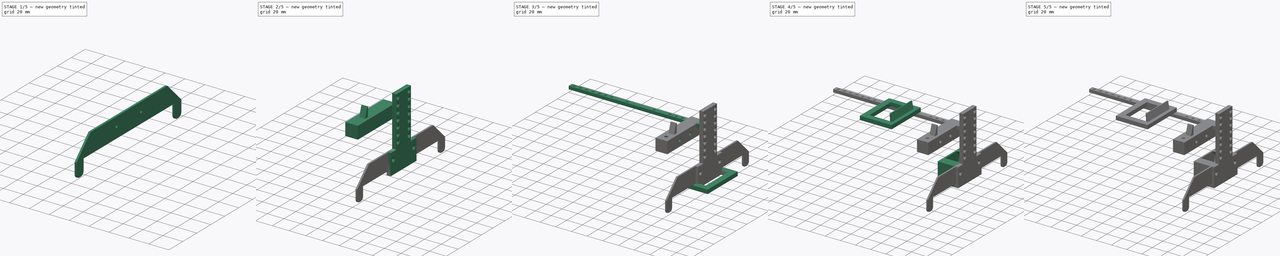
[diagram: build sequence overview — one tinted view per stage of 5, left to right]
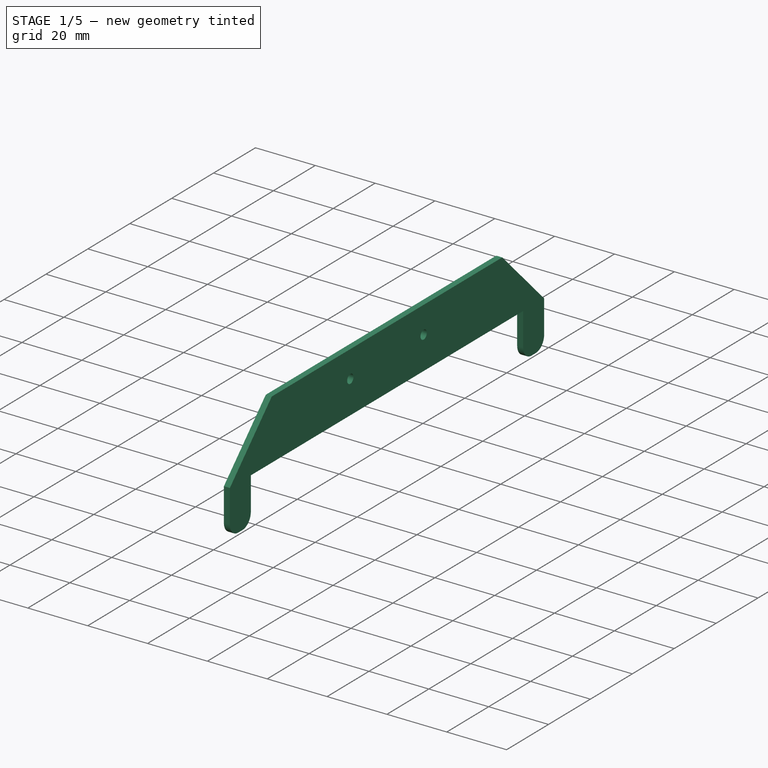
[diagram: stage 1 of 5 — iso view after this stage's code; geometry added in this stage tinted green]
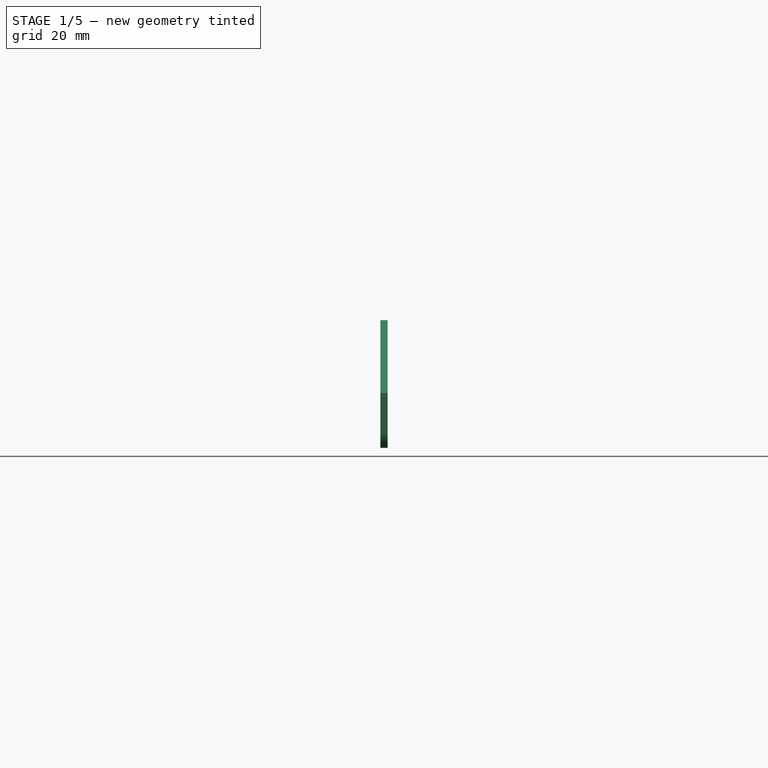
[diagram: stage 1 of 5 — front view after this stage's code; geometry added in this stage tinted green]
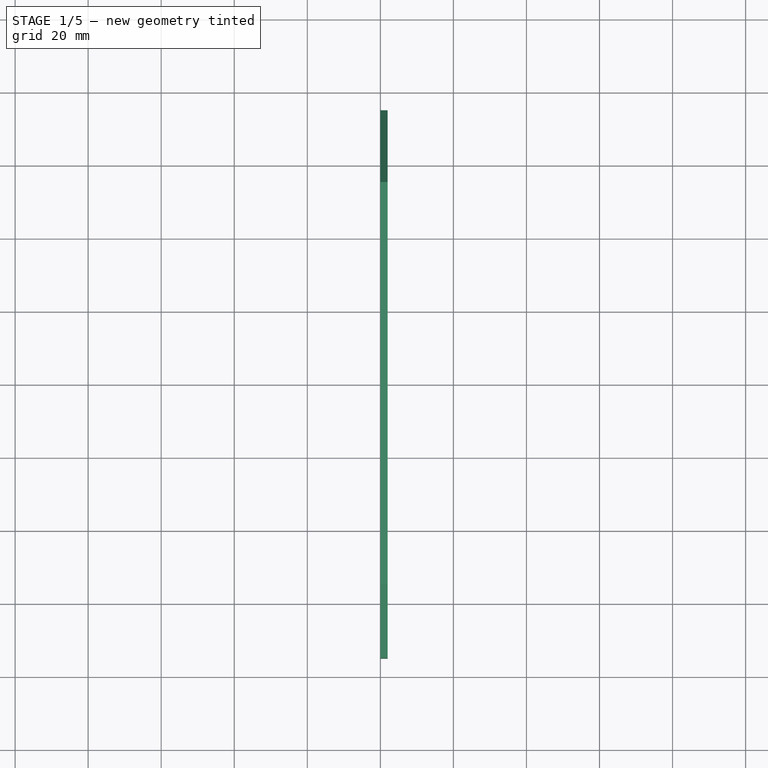
[diagram: stage 1 of 5 — top view after this stage's code; geometry added in this stage tinted green]
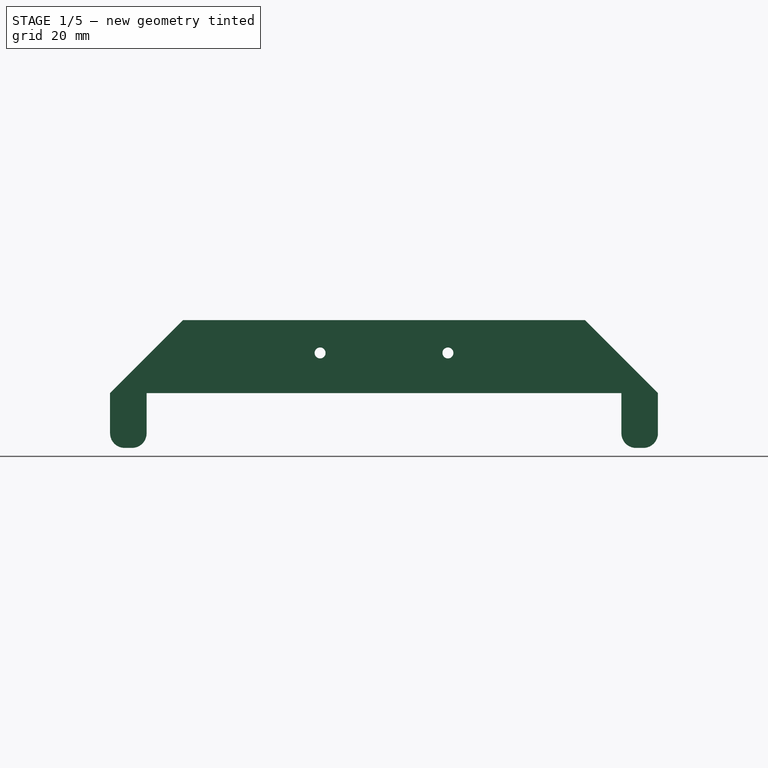
[diagram: stage 1 of 5 — right view after this stage's code; geometry added in this stage tinted green]
FCSTD DOCUMENT  (FreeCAD 0.21R33771 (Git))
Label: chessbot_chassy
License: All rights reserved
LicenseURL: https://en.wikipedia.org/wiki/All_rights_reserved
objects: Sketcher::SketchObject×18, PartDesign::Pad×9, PartDesign::Pocket×9, PartDesign::Body×8, PartDesign::Chamfer×3, Part::Mirroring×2, PartDesign::Hole×1, PartDesign::Fillet×1
note: 74 computed .brp shape members not serialized (recipe doc carries the construction recipe); baked Part::Feature solids carry a one-line shape summary decoded from their .brp

FEATURE [PartDesign::Body] Body005  label="Z-Conector"
  Group = -> [Sketch013,Pad007,Chamfer]
  Origin = -> Origin005
  Placement = pos=(-27,0,0) rot=(0,0,1;0rad)
  Tip = -> Chamfer
FEATURE [Sketcher::SketchObject] Sketch018
  FullyConstrained = true
  MapMode = 5
  Placement = pos=(0,0,0) rot=(0.57735,0.57735,0.57735;2.0944rad)
  Support = -> [YZ_Plane008]
  sketch-geometry (5):
    g0: LineSegment StartX=75 StartY=25 StartZ=0 EndX=75 EndY=-10 EndZ=0
    g1: LineSegment StartX=75 StartY=-10 StartZ=0 EndX=-75 EndY=-10 EndZ=0
    g2: LineSegment StartX=-75 StartY=-10 StartZ=0 EndX=-75 EndY=25 EndZ=0
    g3: LineSegment StartX=-75 StartY=25 StartZ=0 EndX=75 EndY=25 EndZ=0
    g4: GeomPoint X=0 Y=7.5 Z=0
  constraints (13):
    c: Coincident(g0,g1)
    c: Coincident(g1,g2)
    c: Coincident(g2,g3)
    c: Coincident(g3,g0)
    c: Horizontal(g1)
    c: Horizontal(g3)
    c: Vertical(g0)
    c: Vertical(g2)
    c: Symmetric(g1,g0,g4)
    c: PointOnObject(g4,g-2)
    c: Distance(g0) = 35
    c: Distance(g3) = 150
    c: DistanceY(g-1,g2) = 25
FEATURE [PartDesign::Pad] Pad010
  Direction = (1,-2e-16,3e-16)
  Length = 2
  Length2 = 10
  Placement = pos=(0,0,0) rot=(0.57735,0.57735,0.57735;2.0944rad)
  Profile = -> Sketch018
  ReferenceAxis = -> Sketch018 [N_Axis]
  Type = 0
FEATURE [Sketcher::SketchObject] Sketch019
  FullyConstrained = true
  MapMode = 5
  Placement = pos=(0,0,0) rot=(0.57735,0.57735,0.57735;2.0944rad)
  Support = -> [YZ_Plane008]
  sketch-geometry (5):
    g0: LineSegment StartX=65 StartY=-45 StartZ=0 EndX=65 EndY=5 EndZ=0
    g1: LineSegment StartX=65 StartY=5 StartZ=0 EndX=-65 EndY=5 EndZ=0
    g2: LineSegment StartX=-65 StartY=5 StartZ=0 EndX=-65 EndY=-45 EndZ=0
    g3: LineSegment StartX=-65 StartY=-45 StartZ=0 EndX=65 EndY=-45 EndZ=0
    g4: GeomPoint X=0 Y=-20 Z=0
  constraints (13):
    c: Coincident(g0,g1)
    c: Coincident(g1,g2)
    c: Coincident(g2,g3)
    c: Coincident(g3,g0)
    c: Horizontal(g1)
    c: Horizontal(g3)
    c: Vertical(g0)
    c: Vertical(g2)
    c: Symmetric(g1,g0,g4)
    c: Distance(g0) = 50
    c: PointOnObject(g4,g-2)
    c: DistanceY(g-1,g1) = 5
    c: Distance(g3) = 130
FEATURE [PartDesign::Pocket] Pocket007
  BaseFeature = -> Pad010
  Direction = (-1,2e-16,-3e-16)
  Length = 2
  Length2 = 5
  Placement = pos=(0,0,0) rot=(0.57735,0.57735,0.57735;2.0944rad)
  Profile = -> Sketch019
  ReferenceAxis = -> Sketch019 [N_Axis]
  Reversed = true
  Type = 0
FEATURE [PartDesign::Fillet] Fillet
  Base = -> Pocket007 [Edge24,Edge21,Edge9,Edge2]
  BaseFeature = -> Pocket007
  Placement = pos=(0,0,0) rot=(0.57735,0.57735,0.57735;2.0944rad)
  Radius = 4
  SupportTransform = false
  UseAllEdges = false
FEATURE [Sketcher::SketchObject] Sketch020
  FullyConstrained = true
  MapMode = 5
  Placement = pos=(0,0,0) rot=(0.57735,0.57735,0.57735;2.0944rad)
  Support = -> [YZ_Plane008]
  sketch-geometry (2):
    g0: Circle CenterX=17.5 CenterY=16 CenterZ=0 NormalX=0 NormalY=0 NormalZ=1 AngleXU=0 Radius=1.5
    g1: Circle CenterX=-17.5 CenterY=16 CenterZ=0 NormalX=0 NormalY=0 NormalZ=1 AngleXU=0 Radius=1.5
  constraints (6):
    c: Equal(g1,g0)
    c: Diameter(g0) = 3
    c: Horizontal(g1,g0)
    c: DistanceX(g-1,g0) = 17.5
    c: DistanceX(g1,g-1) = 17.5
    c: DistanceY(g-1,g0) = 16
FEATURE [PartDesign::Pocket] Pocket008
  BaseFeature = -> Fillet
  Direction = (-1,2e-16,-3e-16)
  Length = 2
  Length2 = 5
  Placement = pos=(0,0,0) rot=(0.57735,0.57735,0.57735;2.0944rad)
  Profile = -> Sketch020
  ReferenceAxis = -> Sketch020 [N_Axis]
  Reversed = true
  Type = 0
FEATURE [PartDesign::Chamfer] Chamfer002
  Angle = 45
  Base = -> Pocket008 [Edge20,Edge3]
  BaseFeature = -> Pocket008
  ChamferType = 0
  FlipDirection = false
  Placement = pos=(0,0,0) rot=(0.57735,0.57735,0.57735;2.0944rad)
  Size = 20
  Size2 = 15
  SupportTransform = false
  UseAllEdges = false
FEATURE [PartDesign::Body] Body008  label="stabilisator"
  Group = -> [Sketch018,Pad010,Sketch019,Pocket007,Fillet,Sketch020,Pocket008,Chamfer002]
  Origin = -> Origin008
  Tip = -> Chamfer002
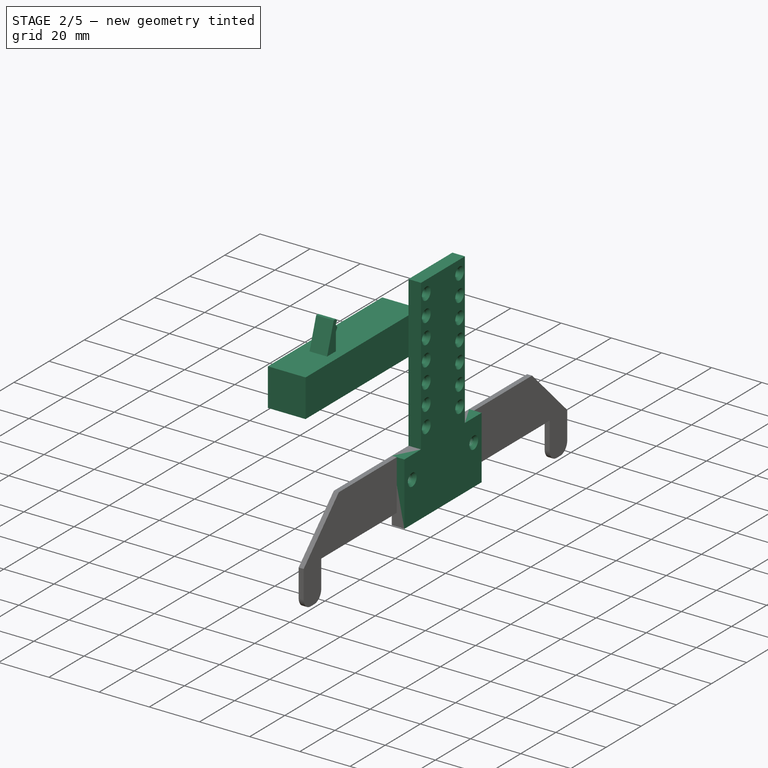
[diagram: stage 2 of 5 — iso view after this stage's code; geometry added in this stage tinted green]
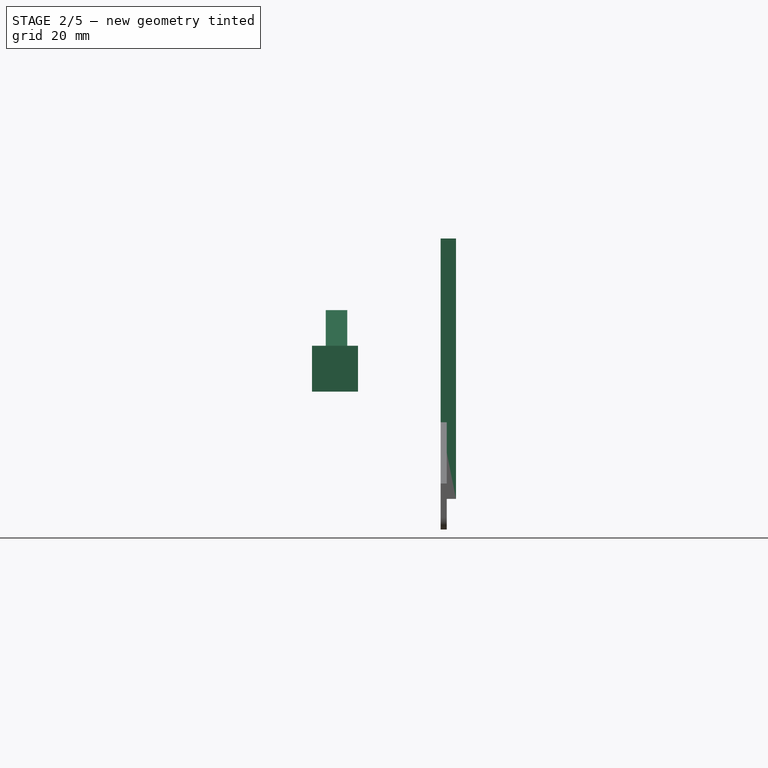
[diagram: stage 2 of 5 — front view after this stage's code; geometry added in this stage tinted green]
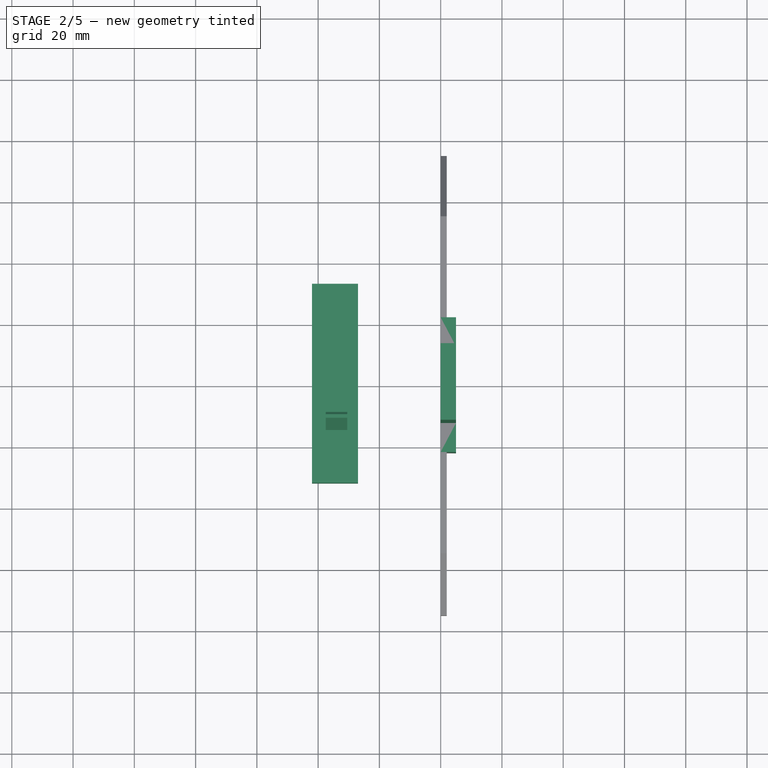
[diagram: stage 2 of 5 — top view after this stage's code; geometry added in this stage tinted green]
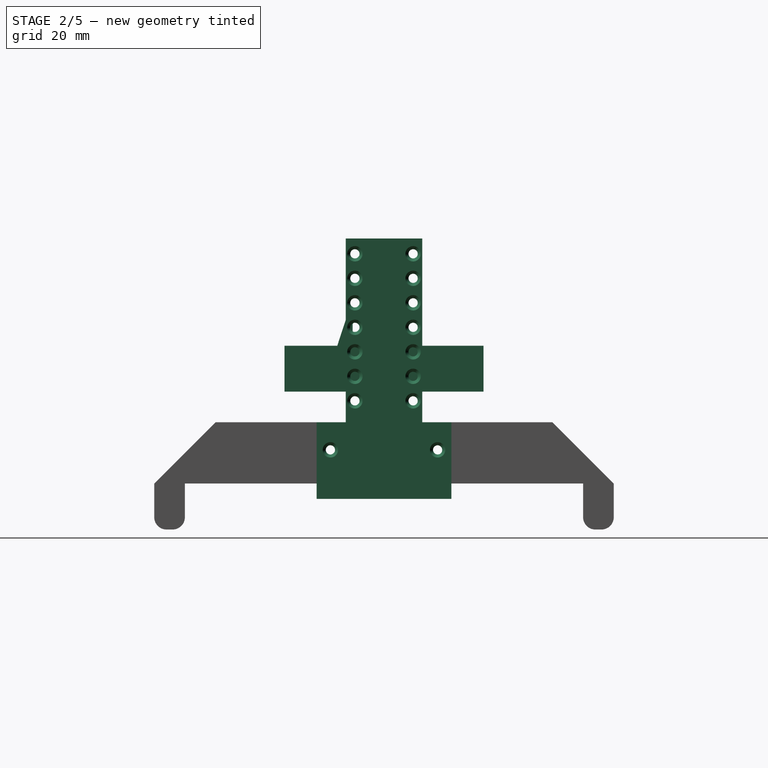
[diagram: stage 2 of 5 — right view after this stage's code; geometry added in this stage tinted green]
FEATURE [PartDesign::Body] Body004  label="X-Connector"
  Group = -> [Sketch012,Pad006,Chamfer001]
  Origin = -> Origin004
  Tip = -> Chamfer001
FEATURE [Sketcher::SketchObject] Sketch013
  FullyConstrained = true
  MapMode = 5
  Placement = pos=(0,0,0) rot=(0.57735,0.57735,0.57735;2.0944rad)
  Support = -> [YZ_Plane005]
  sketch-geometry (24):
    g0: LineSegment StartX=22 StartY=0 StartZ=0 EndX=-22 EndY=0 EndZ=0
    g1: LineSegment StartX=-22 StartY=0 StartZ=0 EndX=-22 EndY=25 EndZ=0
    g2: LineSegment StartX=-22 StartY=25 StartZ=0 EndX=-12.5 EndY=25 EndZ=0
    g3: LineSegment StartX=-12.5 StartY=25 StartZ=0 EndX=-12.5 EndY=85 EndZ=0
    g4: LineSegment StartX=-12.5 StartY=85 StartZ=0 EndX=12.5 EndY=85 EndZ=0
    g5: LineSegment StartX=12.5 StartY=85 StartZ=0 EndX=12.5 EndY=25 EndZ=0
    g6: LineSegment StartX=12.5 StartY=25 StartZ=0 EndX=22 EndY=25 EndZ=0
    g7: LineSegment StartX=22 StartY=25 StartZ=0 EndX=22 EndY=0 EndZ=0
    g8: Circle CenterX=-17.5 CenterY=16 CenterZ=0 NormalX=0 NormalY=0 NormalZ=1 AngleXU=0 Radius=1.5
    g9: Circle CenterX=17.5 CenterY=16 CenterZ=0 NormalX=0 NormalY=0 NormalZ=1 AngleXU=0 Radius=1.5
    g10: Circle CenterX=-9.5 CenterY=80 CenterZ=0 NormalX=0 NormalY=0 NormalZ=1 AngleXU=0 Radius=1.5
    g11: Circle CenterX=-9.5 CenterY=72 CenterZ=0 NormalX=0 NormalY=0 NormalZ=1 AngleXU=0 Radius=1.5
    g12: Circle CenterX=-9.5 CenterY=64 CenterZ=0 NormalX=0 NormalY=0 NormalZ=1 AngleXU=0 Radius=1.5
    g13: Circle CenterX=-9.5 CenterY=56 CenterZ=0 NormalX=0 NormalY=0 NormalZ=1 AngleXU=0 Radius=1.5
    g14: Circle CenterX=-9.5 CenterY=32 CenterZ=0 NormalX=0 NormalY=0 NormalZ=1 AngleXU=0 Radius=1.5
    g15: Circle CenterX=-9.5 CenterY=48 CenterZ=0 NormalX=0 NormalY=0 NormalZ=1 AngleXU=0 Radius=1.5
    g16: Circle CenterX=-9.5 CenterY=40 CenterZ=0 NormalX=0 NormalY=0 NormalZ=1 AngleXU=0 Radius=1.5
    g17: Circle CenterX=9.5 CenterY=80 CenterZ=0 NormalX=0 NormalY=0 NormalZ=1 AngleXU=0 Radius=1.5
    g18: Circle CenterX=9.5 CenterY=72 CenterZ=0 NormalX=0 NormalY=0 NormalZ=1 AngleXU=0 Radius=1.5
    g19: Circle CenterX=9.5 CenterY=64 CenterZ=0 NormalX=0 NormalY=0 NormalZ=1 AngleXU=0 Radius=1.5
    g20: Circle CenterX=9.5 CenterY=56 CenterZ=0 NormalX=0 NormalY=0 NormalZ=1 AngleXU=0 Radius=1.5
    g21: Circle CenterX=9.5 CenterY=32 CenterZ=0 NormalX=0 NormalY=0 NormalZ=1 AngleXU=0 Radius=1.5
    g22: Circle CenterX=9.5 CenterY=48 CenterZ=0 NormalX=0 NormalY=0 NormalZ=1 AngleXU=0 Radius=1.5
    g23: Circle CenterX=9.5 CenterY=40 CenterZ=0 NormalX=0 NormalY=0 NormalZ=1 AngleXU=0 Radius=1.5
  constraints (71):
    c: Horizontal(g0)
    c: Coincident(g0,g1)
    c: Vertical(g1)
    c: Coincident(g1,g2)
    c: Horizontal(g2)
    c: Coincident(g2,g3)
    c: Vertical(g3)
    c: Coincident(g3,g4)
    c: Horizontal(g4)
    c: Coincident(g4,g5)
    c: Vertical(g5)
    c: Coincident(g5,g6)
    c: Horizontal(g6)
    c: Coincident(g6,g7)
    c: Coincident(g7,g0)
    c: Vertical(g7)
    c: Distance(g0) = 44
    c: Distance(g7) = 25
    c: Equal(g7,g1)
    c: Equal(g2,g6)
    c: Distance(g4) = 25
    c: Symmetric(g0,g0,g-1)
    c: Distance(g3) = 60
    c: Equal(g8,g9)
    c: Horizontal(g8,g9)
    c: Distance(g9,g8) = 35
    c: Diameter(g9) = 3
    c: DistanceX(g-1,g9) = 17.5
    c: DistanceY(g-1,g9) = 16
    c: Equal(g10,g11)
    c: Equal(g11,g12)
    c: Equal(g12,g13)
    c: Equal(g13,g14)
    c: Equal(g14,g15)
    c: Equal(g15,g16)
    c: Vertical(g10,g11)
    c: Vertical(g11,g12)
    c: Vertical(g12,g13)
    c: Vertical(g13,g14)
    c: Vertical(g14,g15)
    c: Vertical(g15,g16)
    c: DistanceY(g10,g3) = 5
    c: DistanceX(g3,g10) = 3
    c: DistanceY(g11,g10) = 8
    c: DistanceY(g12,g11) = 8
    c: DistanceY(g13,g12) = 8
    c: DistanceY(g15,g13) = 8
    c: DistanceY(g16,g15) = 8
    c: DistanceY(g14,g16) = 8
    c: Diameter(g10) = 3
    c: Equal(g17,g18)
    c: Equal(g18,g19)
    c: Equal(g19,g20)
    c: Equal(g20,g21)
    c: Equal(g21,g22)
    c: Equal(g22,g23)
    c: Diameter(g17) = 3
    c: DistanceY(g18,g17) = 8
    c: DistanceY(g19,g18) = 8
    c: DistanceY(g20,g19) = 8
    c: DistanceY(g22,g20) = 8
    c: DistanceY(g23,g22) = 8
    c: DistanceY(g21,g23) = 8
    c: Vertical(g17,g18)
    c: Vertical(g18,g19)
    c: Vertical(g19,g20)
    c: Vertical(g20,g22)
    c: Vertical(g22,g23)
    c: Vertical(g23,g21)
    c: DistanceY(g17,g4) = 5
    c: DistanceX(g17,g4) = 3
FEATURE [PartDesign::Pad] Pad007
  Direction = (1,-2e-16,3e-16)
  Length = 5
  Length2 = 10
  Placement = pos=(0,0,0) rot=(0.57735,0.57735,0.57735;2.0944rad)
  Profile = -> Sketch013
  ReferenceAxis = -> Sketch013 [N_Axis]
  Type = 0
FEATURE [Sketcher::SketchObject] Sketch014
  AttachmentOffset = pos=(-27,0,50) rot=(0,0,1;0rad)
  FullyConstrained = true
  MapMode = 5
  Placement = pos=(-27,0,50) rot=(0,0,1;0rad)
  Support = -> [XY_Plane006]
  sketch-geometry (4):
    g0: LineSegment StartX=0 StartY=32.5 StartZ=0 EndX=-15 EndY=32.5 EndZ=0
    g1: LineSegment StartX=-15 StartY=32.5 StartZ=0 EndX=-15 EndY=-32.5 EndZ=0
    g2: LineSegment StartX=-15 StartY=-32.5 StartZ=0 EndX=0 EndY=-32.5 EndZ=0
    g3: LineSegment StartX=0 StartY=-32.5 StartZ=0 EndX=0 EndY=32.5 EndZ=0
  constraints (11):
    c: Coincident(g0,g1)
    c: Coincident(g1,g2)
    c: Coincident(g2,g3)
    c: Coincident(g3,g0)
    c: Horizontal(g0)
    c: Horizontal(g2)
    c: Vertical(g1)
    c: Vertical(g3)
    c: Distance(g0) = 15
    c: Distance(g1) = 65
    c: Symmetric(g3,g3,g-1)
FEATURE [PartDesign::Pad] Pad008
  Direction = (0,0,1)
  Length = 15
  Length2 = 10
  Profile = -> Sketch014
  ReferenceAxis = -> Sketch014 [N_Axis]
  Reversed = true
  Type = 0
FEATURE [PartDesign::Body] Body006  label="BridgeConnector"
  Group = -> [Sketch014,Pad008,Sketch015,Sketch016,Pocket005,Pocket006]
  Origin = -> Origin006
  Tip = -> Pocket006
FEATURE [Sketcher::SketchObject] Sketch017
  AttachmentOffset = pos=(0,0,-34) rot=(0,0,1;0rad)
  FullyConstrained = true
  MapMode = 5
  Placement = pos=(-34,7.5e-15,-7.5e-15) rot=(0.57735,0.57735,0.57735;2.0944rad)
  Support = -> [YZ_Plane007]
  sketch-geometry (11):
    g0: LineSegment StartX=10.25 StartY=50 StartZ=0 EndX=10.25 EndY=57 EndZ=0
    g1: LineSegment StartX=10.25 StartY=57 StartZ=0 EndX=9.45 EndY=58.2 EndZ=0
    g2: LineSegment StartX=9.45 StartY=58.2 StartZ=0 EndX=9.45 EndY=58.6 EndZ=0
    g3: LineSegment StartX=9.45 StartY=58.6 StartZ=0 EndX=10.25 EndY=59.2 EndZ=0
    g4: LineSegment StartX=10.25 StartY=59.2 StartZ=0 EndX=10.25 EndY=60 EndZ=0
    g5: LineSegment StartX=10.25 StartY=60 StartZ=0 EndX=9.65 EndY=60.6 EndZ=0
    g6: LineSegment StartX=9.65 StartY=60.6 StartZ=0 EndX=9.65 EndY=61 EndZ=0
    g7: LineSegment StartX=9.65 StartY=61 StartZ=0 EndX=10.25 EndY=61.6 EndZ=0
    g8: LineSegment StartX=10.25 StartY=61.6 StartZ=0 EndX=11.45 EndY=61.6 EndZ=0
    g9: LineSegment StartX=11.45 StartY=61.6 StartZ=0 EndX=15.25 EndY=50 EndZ=0
    g10: LineSegment StartX=15.25 StartY=50 StartZ=0 EndX=10.25 EndY=50 EndZ=0
  constraints (33):
    c: Vertical(g0)
    c: Coincident(g0,g1)
    c: Coincident(g1,g2)
    c: Vertical(g2)
    c: Coincident(g2,g3)
    c: Coincident(g3,g4)
    c: Vertical(g4)
    c: Coincident(g4,g5)
    c: Coincident(g5,g6)
    c: Vertical(g6)
    c: Coincident(g6,g7)
    c: Coincident(g7,g8)
    c: Horizontal(g8)
    c: Coincident(g8,g9)
    c: Coincident(g9,g10)
    c: Coincident(g10,g0)
    c: Horizontal(g10)
    c: DistanceX(g1,g0) = 0.8
    c: DistanceX(g5,g4) = 0.6
    c: DistanceY(g0,g1) = 1.2
    c: DistanceY(g2,g3) = 0.6
    c: DistanceY(g4,g5) = 0.6
    c: DistanceY(g6,g7) = 0.6
    c: DistanceX(g6,g7) = 0.6
    c: Distance(g8) = 1.2
    c: Distance(g4) = 0.8
    c: Distance(g2) = 0.4
    c: Distance(g6) = 0.4
    c: Distance(g0) = 7
    c: Distance(g10) = 5
    c: DistanceX(g2,g3) = 0.8
    c: DistanceX(g-1,g0) = 10.25
    c: DistanceY(g-1,g0) = 50
FEATURE [PartDesign::Pad] Pad009
  Direction = (1,-2e-16,3e-16)
  Length = 7
  Length2 = 10
  Midplane = true
  Placement = pos=(0,0,0) rot=(0.57735,0.57735,0.57735;2.0944rad)
  Profile = -> Sketch017
  ReferenceAxis = -> Sketch017 [N_Axis]
  Type = 0
FEATURE [PartDesign::Body] Body007  label="MCHolder"
  Group = -> [Sketch017,Pad009]
  Origin = -> Origin007
  Tip = -> Pad009
FEATURE [Part::Mirroring] Part__Mirroring001  label="Pad009 (Mirror #2)"
  Base = (0,0,0)
  Normal = (0,1,0)
  Source = -> Pad009
FEATURE [PartDesign::Chamfer] Chamfer
  Angle = 45
  Base = -> Pad007 [Edge33,Edge27,Edge45,Edge66,Edge30,Edge36,Edge60,Edge63,Edge69,Edge72,Edge57,Edge54,Edge51,Edge48,Edge42,Edge39]
  BaseFeature = -> Pad007
  ChamferType = 0
  FlipDirection = false
  Placement = pos=(0,0,0) rot=(0.57735,0.57735,0.57735;2.0944rad)
  Size = 1
  Size2 = 1
  SupportTransform = false
  UseAllEdges = false
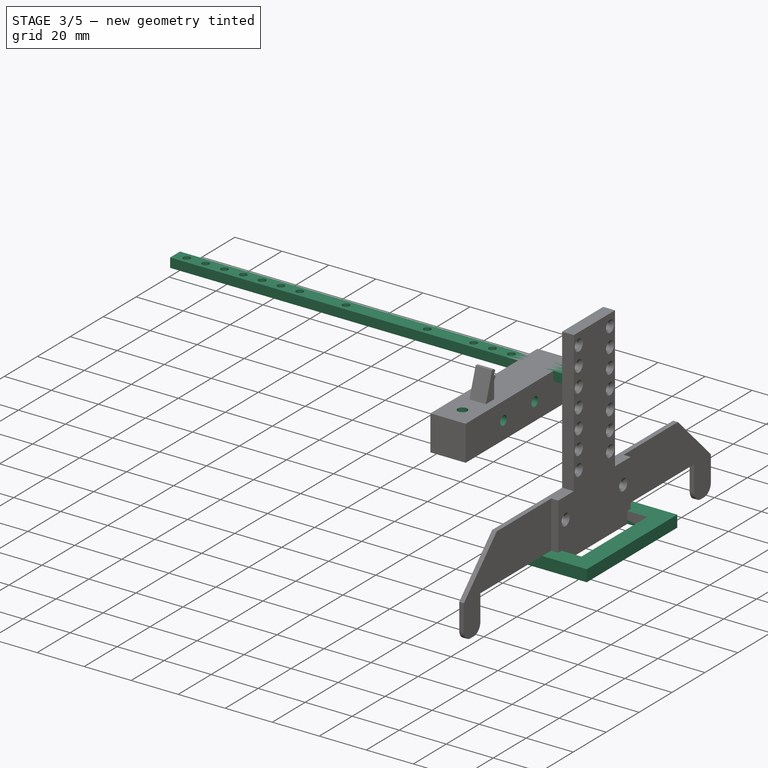
[diagram: stage 3 of 5 — iso view after this stage's code; geometry added in this stage tinted green]
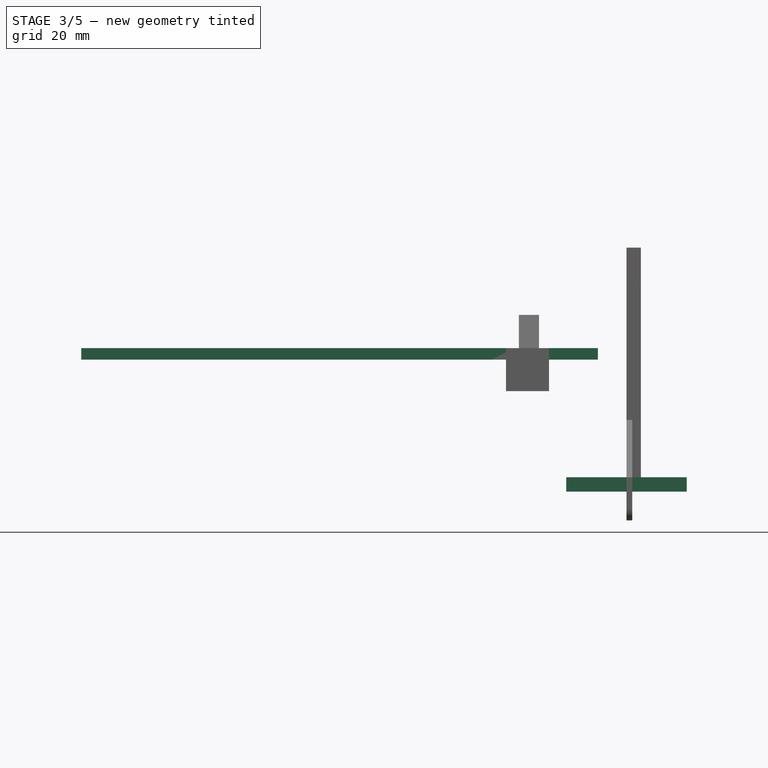
[diagram: stage 3 of 5 — front view after this stage's code; geometry added in this stage tinted green]
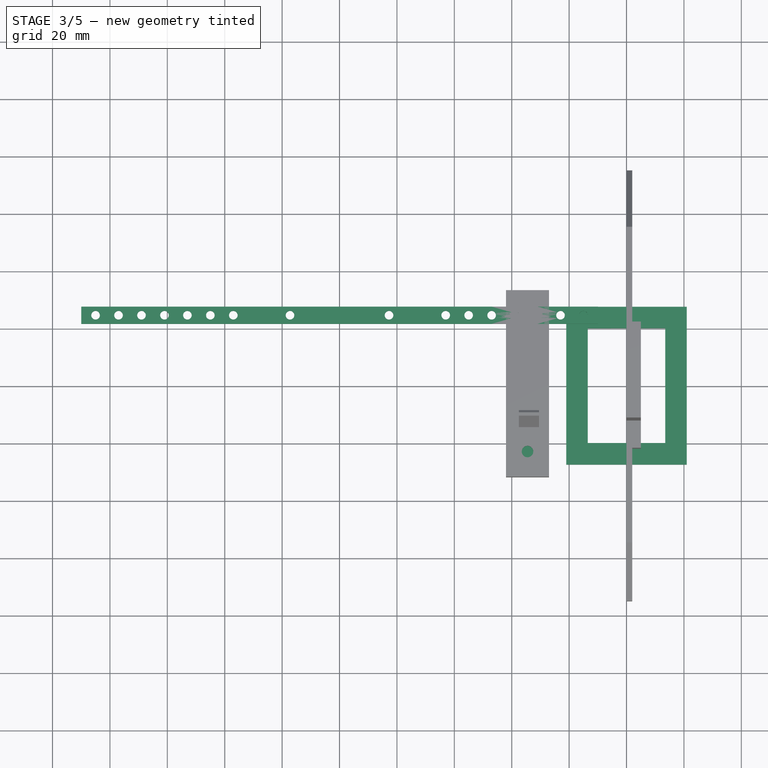
[diagram: stage 3 of 5 — top view after this stage's code; geometry added in this stage tinted green]
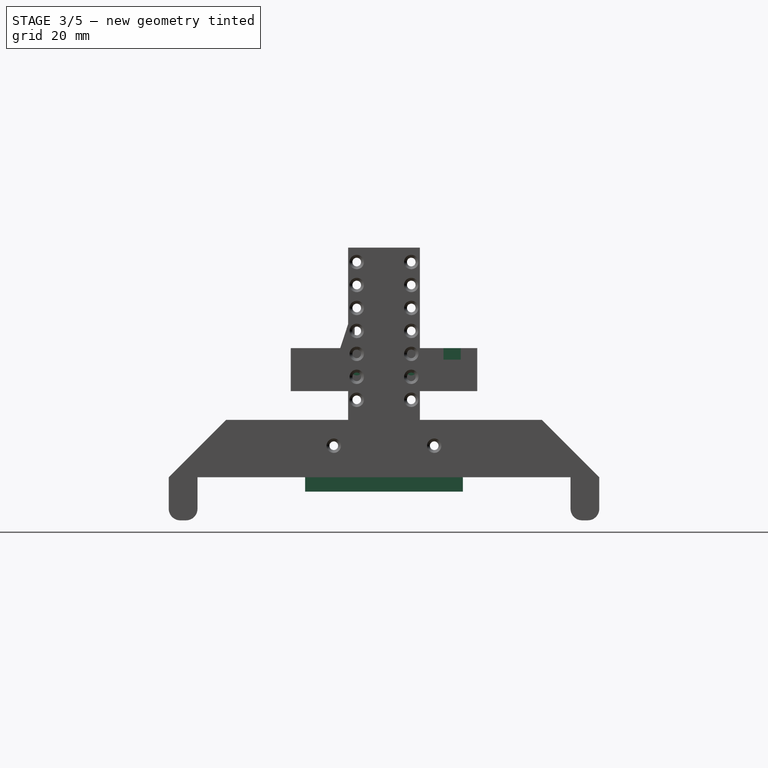
[diagram: stage 3 of 5 — right view after this stage's code; geometry added in this stage tinted green]
FEATURE [PartDesign::Body] Body  label="MotorMount"
  Group = -> [Sketch,Pad,Sketch001,Pocket,Sketch002,Pocket001,Sketch005,Pocket002,Sketch006,Pocket003]
  Origin = -> Origin
  Tip = -> Pocket003
FEATURE [Sketcher::SketchObject] Sketch009  label="Baseplate"
  FullyConstrained = true
  MapMode = 5
  Support = -> [XY_Plane003]
  sketch-geometry (10):
    g0: LineSegment StartX=-21 StartY=27.5 StartZ=0 EndX=-21 EndY=-27.5 EndZ=0
    g1: LineSegment StartX=-21 StartY=-27.5 StartZ=0 EndX=21 EndY=-27.5 EndZ=0
    g2: LineSegment StartX=21 StartY=-27.5 StartZ=0 EndX=21 EndY=27.5 EndZ=0
    g3: LineSegment StartX=21 StartY=27.5 StartZ=0 EndX=-21 EndY=27.5 EndZ=0
    g4: GeomPoint X=0 Y=0 Z=0
    g5: LineSegment StartX=13.5 StartY=-20 StartZ=0 EndX=13.5 EndY=20 EndZ=0
    g6: LineSegment StartX=13.5 StartY=20 StartZ=0 EndX=-13.5 EndY=20 EndZ=0
    g7: LineSegment StartX=-13.5 StartY=20 StartZ=0 EndX=-13.5 EndY=-20 EndZ=0
    g8: LineSegment StartX=-13.5 StartY=-20 StartZ=0 EndX=13.5 EndY=-20 EndZ=0
    g9: GeomPoint X=0 Y=0 Z=0
  constraints (24):
    c: Coincident(g0,g1)
    c: Coincident(g1,g2)
    c: Coincident(g2,g3)
    c: Coincident(g3,g0)
    c: Horizontal(g1)
    c: Horizontal(g3)
    c: Vertical(g0)
    c: Vertical(g2)
    c: Symmetric(g1,g0,g4)
    c: Distance(g3) = 42
    c: Distance(g2) = 55
    c: Coincident(g-1,g4)
    c: Coincident(g5,g6)
    c: Coincident(g6,g7)
    c: Coincident(g7,g8)
    c: Coincident(g8,g5)
    c: Horizontal(g6)
    c: Horizontal(g8)
    c: Vertical(g5)
    c: Vertical(g7)
    c: Symmetric(g6,g5,g9)
    c: Distance(g6) = 27
    c: Distance(g5) = 40
    c: Coincident(g9,g4)
FEATURE [PartDesign::Pad] Pad004
  Direction = (0,0,1)
  Length = 5
  Length2 = 10
  Profile = -> Sketch009
  ReferenceAxis = -> Sketch009 [N_Axis]
  Type = 0
FEATURE [Sketcher::SketchObject] Sketch012
  AttachmentOffset = pos=(-100,0,50) rot=(0,0,1;0rad)
  FullyConstrained = false
  MapMode = 5
  Placement = pos=(-100,0,50) rot=(0,0,1;0rad)
  Support = -> [XY_Plane004]
  sketch-geometry (22):
    g0: LineSegment StartX=-90 StartY=26.75 StartZ=0 EndX=-90 EndY=20.75 EndZ=0
    g1: LineSegment StartX=-90 StartY=20.75 StartZ=0 EndX=90 EndY=20.75 EndZ=0
    g2: LineSegment StartX=90 StartY=20.75 StartZ=0 EndX=90 EndY=26.75 EndZ=0
    g3: LineSegment StartX=90 StartY=26.75 StartZ=0 EndX=-90 EndY=26.75 EndZ=0
    g4: GeomPoint X=0 Y=23.75 Z=0
    g5: Circle CenterX=17.25 CenterY=23.75 CenterZ=0 NormalX=0 NormalY=0 NormalZ=1 AngleXU=0 Radius=1.5
    g6: Circle CenterX=85 CenterY=23.75 CenterZ=0 NormalX=0 NormalY=0 NormalZ=1 AngleXU=0 Radius=1.5
    g7: Circle CenterX=77 CenterY=23.75 CenterZ=0 NormalX=0 NormalY=0 NormalZ=1 AngleXU=0 Radius=1.5
    g8: Circle CenterX=69 CenterY=23.75 CenterZ=0 NormalX=0 NormalY=0 NormalZ=1 AngleXU=0 Radius=1.5
    g9: Circle CenterX=61 CenterY=23.75 CenterZ=0 NormalX=0 NormalY=0 NormalZ=1 AngleXU=0 Radius=1.5
    g10: Circle CenterX=53 CenterY=23.75 CenterZ=0 NormalX=0 NormalY=0 NormalZ=1 AngleXU=0 Radius=1.5
    g11: Circle CenterX=45 CenterY=23.75 CenterZ=0 NormalX=0 NormalY=0 NormalZ=1 AngleXU=0 Radius=1.5
    g12: Circle CenterX=37 CenterY=23.75 CenterZ=0 NormalX=0 NormalY=0 NormalZ=1 AngleXU=0 Radius=1.5
    g13: Circle CenterX=-85 CenterY=23.75 CenterZ=0 NormalX=0 NormalY=0 NormalZ=1 AngleXU=0 Radius=1.5
    g14: Circle CenterX=-77 CenterY=23.75 CenterZ=0 NormalX=0 NormalY=0 NormalZ=1 AngleXU=0 Radius=1.5
    g15: Circle CenterX=-69 CenterY=23.75 CenterZ=0 NormalX=0 NormalY=0 NormalZ=1 AngleXU=0 Radius=1.5
    g16: Circle CenterX=-61 CenterY=23.75 CenterZ=0 NormalX=0 NormalY=0 NormalZ=1 AngleXU=0 Radius=1.5
    g17: Circle CenterX=-53 CenterY=23.75 CenterZ=0 NormalX=0 NormalY=0 NormalZ=1 AngleXU=0 Radius=1.5
    g18: Circle CenterX=-45 CenterY=23.75 CenterZ=0 NormalX=0 NormalY=0 NormalZ=1 AngleXU=0 Radius=1.5
    g19: Circle CenterX=-37 CenterY=23.75 CenterZ=0 NormalX=0 NormalY=0 NormalZ=1 AngleXU=0 Radius=1.5
    g20: GeomPoint X=0 Y=23.75 Z=0
    g21: Circle CenterX=-17.25 CenterY=23.75 CenterZ=0 NormalX=0 NormalY=0 NormalZ=1 AngleXU=0 Radius=1.5
  constraints (61):
    c: Coincident(g0,g1)
    c: Coincident(g1,g2)
    c: Coincident(g2,g3)
    c: Coincident(g3,g0)
    c: Horizontal(g1)
    c: Horizontal(g3)
    c: Vertical(g0)
    c: Vertical(g2)
    c: Symmetric(g1,g0,g4)
    c: PointOnObject(g4,g-2)
    c: Distance(g2) = 6
    c: Distance(g3) = 180
    c: Diameter(g5) = 3
    c: Equal(g5,g12)
    c: Equal(g5,g11)
    c: Equal(g5,g10)
    c: Equal(g5,g9)
    c: Equal(g5,g8)
    c: Equal(g5,g7)
    c: Equal(g5,g6)
    c: Horizontal(g5,g12)
    c: Horizontal(g5,g11)
    c: Horizontal(g10,g5)
    c: Horizontal(g5,g9)
    c: Horizontal(g5,g7)
    c: Horizontal(g5,g6)
    c: Horizontal(g5,g8)
    c: DistanceX(g-1,g5) = 17.25
    c: DistanceY(g-1,g5) = 23.75
    c: DistanceX(g-1,g6) = 85
    c: Horizontal(g4,g5)
    c: DistanceX(g7,g6) = 8
    c: DistanceX(g8,g7) = 8
    c: DistanceX(g9,g8) = 8
    c: DistanceX(g10,g9) = 8
    c: DistanceX(g11,g10) = 8
    c: DistanceX(g12,g11) = 8
    c: Diameter(g21) = 3
    c: Equal(g21,g19)
    c: Equal(g21,g18)
    c: Equal(g21,g17)
    c: Equal(g21,g16)
    c: Equal(g21,g15)
    c: Equal(g21,g14)
    c: Equal(g21,g13)
    c: Horizontal(g4,g21)
    c: Horizontal(g4,g19)
    c: Horizontal(g4,g18)
    c: Horizontal(g4,g17)
    c: Horizontal(g4,g16)
    c: Horizontal(g4,g15)
    c: Horizontal(g4,g14)
    c: Horizontal(g4,g13)
    c: DistanceX(g13,g4) = 85
    c: DistanceX(g13,g14) = 8
    c: DistanceX(g14,g15) = 8
    c: DistanceX(g15,g16) = 8
    c: DistanceX(g16,g17) = 8
    c: DistanceX(g17,g18) = 8
    c: DistanceX(g18,g19) = 8
    c: DistanceX(g21,g4) = 17.25
FEATURE [PartDesign::Pad] Pad006
  Direction = (0,0,1)
  Length = 4
  Length2 = 10
  Profile = -> Sketch012
  ReferenceAxis = -> Sketch012 [N_Axis]
  Reversed = true
  Type = 0
FEATURE [PartDesign::Chamfer] Chamfer001
  Angle = 45
  Base = -> Pad006 [Edge24,Edge27,Edge30,Edge33,Edge36,Edge21,Edge18,Edge15,Edge60,Edge39,Edge42,Edge45,Edge48,Edge51,Edge54,Edge57]
  BaseFeature = -> Pad006
  ChamferType = 0
  FlipDirection = false
  Size = 1.5
  Size2 = 1
  SupportTransform = false
  UseAllEdges = false
FEATURE [Sketcher::SketchObject] Sketch015
  AttachmentOffset = pos=(-34.5,0,50) rot=(0,0,1;0rad)
  FullyConstrained = true
  MapMode = 5
  Placement = pos=(-34.5,0,50) rot=(0,0,1;0rad)
  Support = -> [XY_Plane006]
  sketch-geometry (2):
    g0: Circle CenterX=0 CenterY=23.75 CenterZ=0 NormalX=0 NormalY=0 NormalZ=1 AngleXU=0 Radius=2
    g1: Circle CenterX=0 CenterY=-23.75 CenterZ=0 NormalX=0 NormalY=0 NormalZ=1 AngleXU=0 Radius=2
  constraints (6):
    c: Diameter(g0) = 4
    c: PointOnObject(g0,g-2)
    c: DistanceY(g-1,g0) = 23.75
    c: PointOnObject(g1,g-2)
    c: Equal(g0,g1)
    c: DistanceY(g1,g-1) = 23.75
FEATURE [Sketcher::SketchObject] Sketch016
  AttachmentOffset = pos=(0,0,-27) rot=(0,0,1;0rad)
  FullyConstrained = true
  MapMode = 5
  Placement = pos=(-27,6e-15,-6e-15) rot=(0.57735,0.57735,0.57735;2.0944rad)
  Support = -> [YZ_Plane006]
  sketch-geometry (2):
    g0: Circle CenterX=-9.5 CenterY=42.5 CenterZ=0 NormalX=0 NormalY=0 NormalZ=1 AngleXU=0 Radius=2
    g1: Circle CenterX=9.5 CenterY=42.5 CenterZ=0 NormalX=0 NormalY=0 NormalZ=1 AngleXU=0 Radius=2
  constraints (6):
    c: Equal(g0,g1)
    c: Diameter(g1) = 4
    c: Horizontal(g0,g1)
    c: DistanceX(g-1,g1) = 9.5
    c: DistanceX(g0,g1) = 19
    c: DistanceY(g-1,g0) = 42.5
FEATURE [PartDesign::Pocket] Pocket005
  BaseFeature = -> Pad008
  Direction = (0,0,-1)
  Length = 4
  Length2 = 5
  Profile = -> Sketch015
  ReferenceAxis = -> Sketch015 [N_Axis]
  Type = 0
FEATURE [PartDesign::Pocket] Pocket006
  BaseFeature = -> Pocket005
  Direction = (-1,2e-16,-3e-16)
  Length = 4
  Length2 = 5
  Profile = -> Sketch016
  ReferenceAxis = -> Sketch016 [N_Axis]
  Type = 0
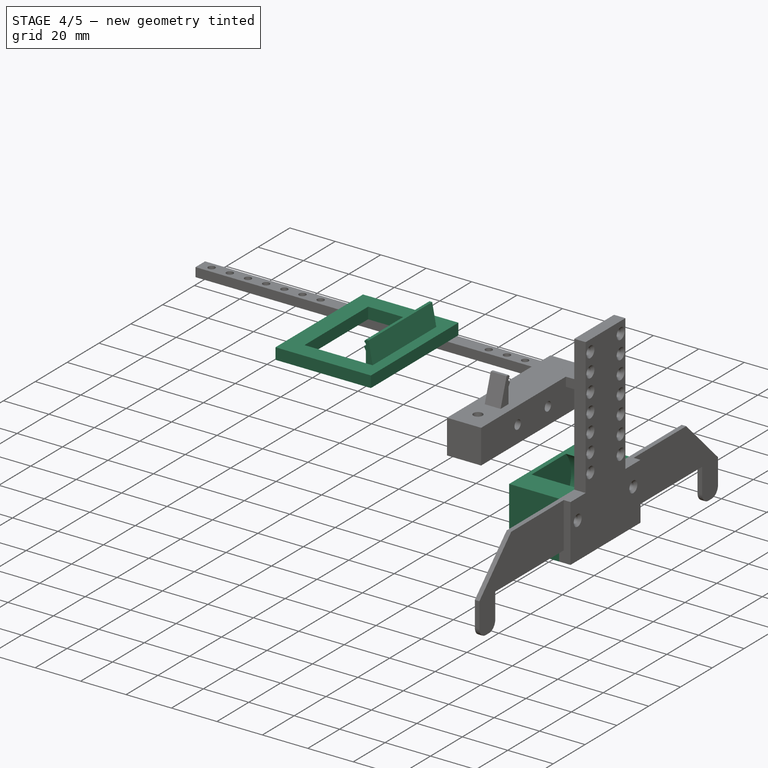
[diagram: stage 4 of 5 — iso view after this stage's code; geometry added in this stage tinted green]
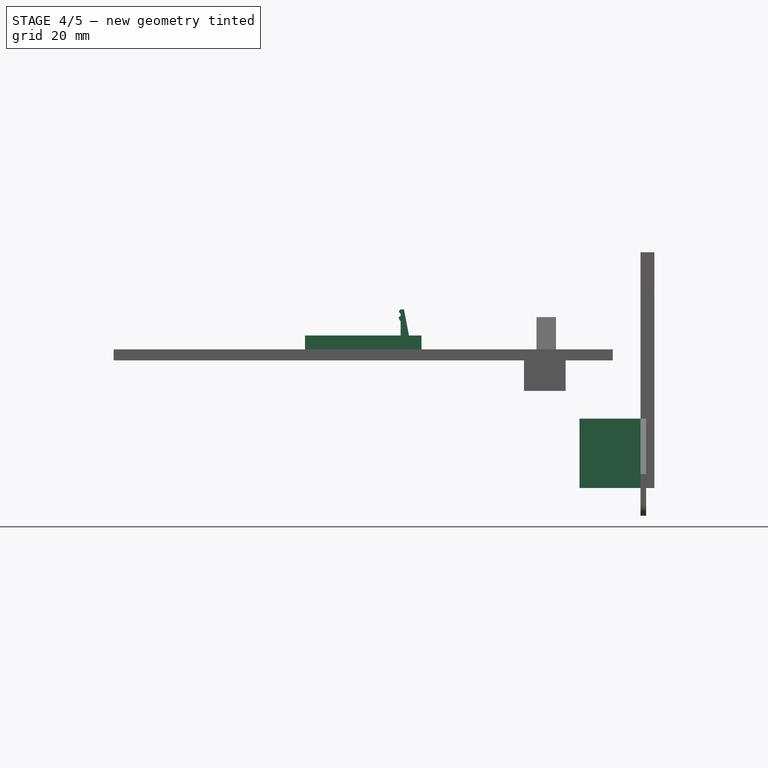
[diagram: stage 4 of 5 — front view after this stage's code; geometry added in this stage tinted green]
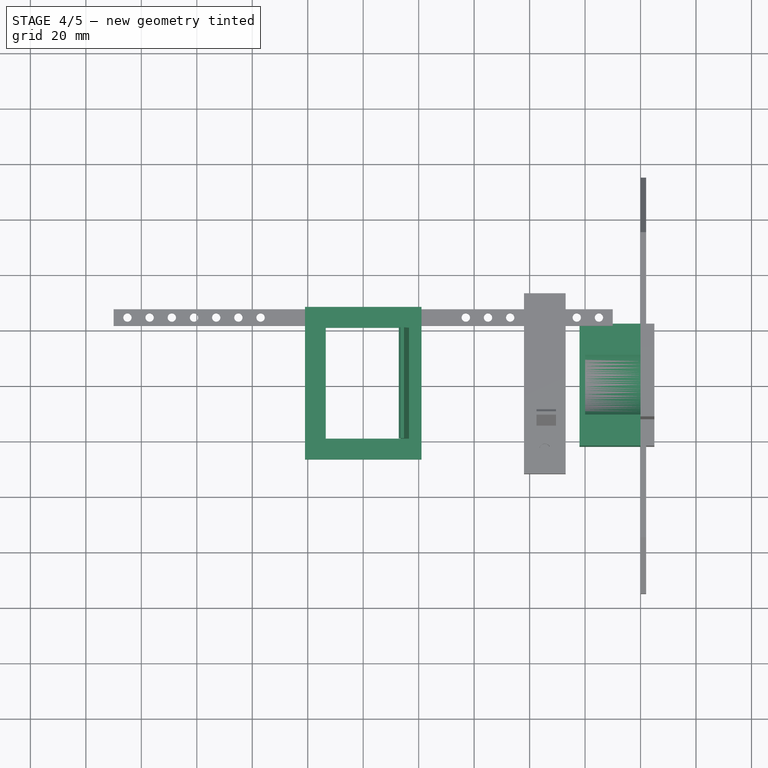
[diagram: stage 4 of 5 — top view after this stage's code; geometry added in this stage tinted green]
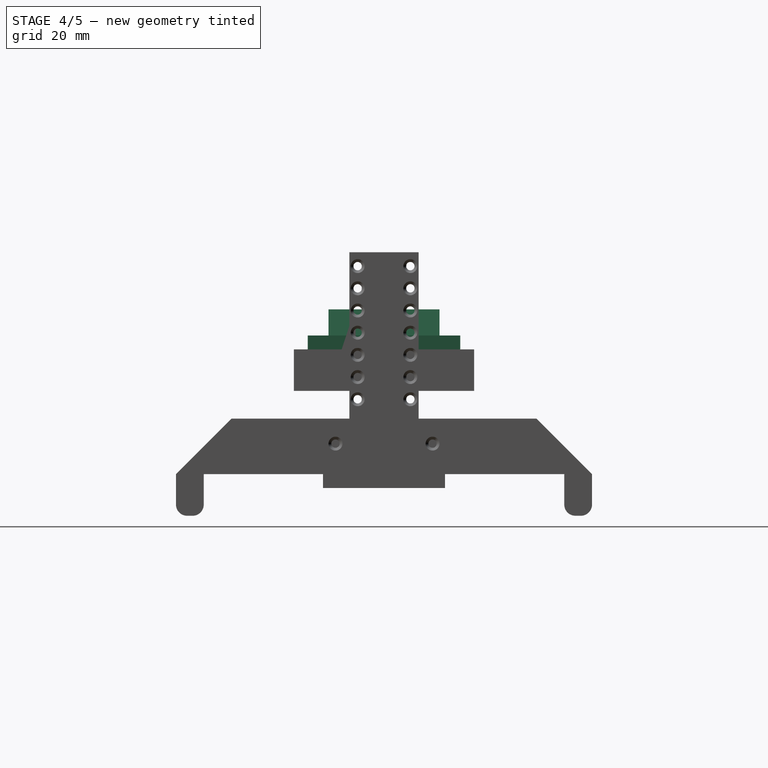
[diagram: stage 4 of 5 — right view after this stage's code; geometry added in this stage tinted green]
FEATURE [Sketcher::SketchObject] Sketch  label="Base"
  FullyConstrained = true
  MapMode = 5
  Support = -> [XY_Plane]
  sketch-geometry (4):
    g0: LineSegment StartX=-22 StartY=22 StartZ=0 EndX=0 EndY=22 EndZ=0
    g1: LineSegment StartX=0 StartY=22 StartZ=0 EndX=0 EndY=-22 EndZ=0
    g2: LineSegment StartX=0 StartY=-22 StartZ=0 EndX=-22 EndY=-22 EndZ=0
    g3: LineSegment StartX=-22 StartY=-22 StartZ=0 EndX=-22 EndY=22 EndZ=0
  constraints (11):
    c: Coincident(g0,g1)
    c: Coincident(g1,g2)
    c: Coincident(g2,g3)
    c: Coincident(g3,g0)
    c: Horizontal(g0)
    c: Horizontal(g2)
    c: Vertical(g1)
    c: Vertical(g3)
    c: Distance(g0) = 22
    c: Distance(g1) = 44
    c: Symmetric(g1,g1,g-1)
FEATURE [PartDesign::Pad] Pad
  Direction = (0,0,1)
  Length = 25
  Length2 = 10
  Profile = -> Sketch
  ReferenceAxis = -> Sketch [N_Axis]
  Type = 0
FEATURE [Sketcher::SketchObject] Sketch001  label="MotorCutout"
  FullyConstrained = true
  MapMode = 5
  Placement = pos=(0,0,0) rot=(0.57735,0.57735,0.57735;2.0944rad)
  Support = -> [YZ_Plane]
  sketch-geometry (1):
    g0: Circle CenterX=0 CenterY=16 CenterZ=0 NormalX=0 NormalY=0 NormalZ=1 AngleXU=0 Radius=14.05
  constraints (3):
    c: Diameter(g0) = 28.1
    c: PointOnObject(g0,g-2)
    c: DistanceY(g-1,g0) = 16
FEATURE [PartDesign::Pocket] Pocket
  BaseFeature = -> Pad
  Direction = (-1,2e-16,-3e-16)
  Length = 20
  Length2 = 5
  Profile = -> Sketch001
  ReferenceAxis = -> Sketch001 [N_Axis]
  Type = 0
FEATURE [Sketcher::SketchObject] Sketch010  label="InsertHoles"
  FullyConstrained = true
  MapMode = 5
  Support = -> [XY_Plane003]
  sketch-geometry (4):
    g0: Circle CenterX=-17.25 CenterY=23.75 CenterZ=0 NormalX=0 NormalY=0 NormalZ=1 AngleXU=0 Radius=2
    g1: Circle CenterX=17.25 CenterY=23.75 CenterZ=0 NormalX=0 NormalY=0 NormalZ=1 AngleXU=0 Radius=2
    g2: Circle CenterX=17.25 CenterY=-23.75 CenterZ=0 NormalX=0 NormalY=0 NormalZ=1 AngleXU=0 Radius=2
    g3: Circle CenterX=-17.25 CenterY=-23.75 CenterZ=0 NormalX=0 NormalY=0 NormalZ=1 AngleXU=0 Radius=2
  constraints (12):
    c: Diameter(g0) = 4
    c: Equal(g0,g1)
    c: Equal(g0,g3)
    c: Equal(g2,g0)
    c: Horizontal(g0,g1)
    c: Horizontal(g3,g2)
    c: Vertical(g0,g3)
    c: Vertical(g2,g1)
    c: DistanceX(g0,g-1) = 17.25
    c: DistanceY(g-1,g0) = 23.75
    c: Distance(g0,g3) = 47.5
    c: Distance(g0,g1) = 34.5
FEATURE [PartDesign::Pocket] Pocket004
  BaseFeature = -> Pad004
  Direction = (0,0,-1)
  Length = 4
  Length2 = 5
  Profile = -> Sketch010
  ReferenceAxis = -> Sketch010 [N_Axis]
  Reversed = true
  Type = 0
FEATURE [Sketcher::SketchObject] Sketch011  label="EspHolderArm"
  AttachmentOffset = pos=(0,5,0) rot=(0,0,1;0rad)
  FullyConstrained = true
  MapMode = 5
  Placement = pos=(0,-1.1e-15,5) rot=(1,0,0;1.5708rad)
  Support = -> [XZ_Plane003]
  sketch-geometry (11):
    g0: LineSegment StartX=-13.5 StartY=0 StartZ=0 EndX=-13.5 EndY=5 EndZ=0
    g1: LineSegment StartX=-13.5 StartY=5 StartZ=0 EndX=-12.8 EndY=6.2 EndZ=0
    g2: LineSegment StartX=-12.8 StartY=6.2 StartZ=0 EndX=-12.8 EndY=6.6 EndZ=0
    g3: LineSegment StartX=-12.8 StartY=6.6 StartZ=0 EndX=-13.5 EndY=7 EndZ=0
    g4: LineSegment StartX=-13.5 StartY=7 StartZ=0 EndX=-13.5 EndY=7.8 EndZ=0
    g5: LineSegment StartX=-13.5 StartY=7.8 StartZ=0 EndX=-12.9 EndY=8.4 EndZ=0
    g6: LineSegment StartX=-12.9 StartY=8.4 StartZ=0 EndX=-12.9 EndY=8.8 EndZ=0
    g7: LineSegment StartX=-12.9 StartY=8.8 StartZ=0 EndX=-13.5 EndY=9.4 EndZ=0
    g8: LineSegment StartX=-13.5 StartY=9.4 StartZ=0 EndX=-14.7 EndY=9.4 EndZ=0
    g9: LineSegment StartX=-14.7 StartY=9.4 StartZ=0 EndX=-16.5 EndY=0 EndZ=0
    g10: LineSegment StartX=-16.5 StartY=0 StartZ=0 EndX=-13.5 EndY=0 EndZ=0
  constraints (33):
    c: Vertical(g0)
    c: Coincident(g0,g1)
    c: Coincident(g1,g2)
    c: Vertical(g2)
    c: Coincident(g2,g3)
    c: Coincident(g3,g4)
    c: Coincident(g4,g5)
    c: Coincident(g5,g6)
    c: Coincident(g6,g7)
    c: Horizontal(g8)
    c: Coincident(g8,g9)
    c: Coincident(g9,g10)
    c: Coincident(g10,g0)
    c: Horizontal(g10)
    c: Vertical(g4)
    c: Vertical(g6)
    c: Distance(g2) = 0.4
    c: Distance(g6) = 0.4
    c: Distance(g4) = 0.8
    c: Distance(g0) = 5
    c: Distance(g10) = 3
    c: Distance(g8) = 1.2
    c: PointOnObject(g0,g-1)
    c: DistanceX(g0,g1) = 0.7
    c: DistanceX(g3,g2) = 0.7
    c: DistanceX(g4,g5) = 0.6
    c: DistanceX(g7,g6) = 0.6
    c: DistanceY(g4,g5) = 0.6
    c: DistanceY(g7,g7) = 0.6
    c: DistanceY(g2,g3) = 0.4
    c: DistanceY(g0,g1) = 1.2
    c: DistanceX(g0,g-1) = 13.5
    c: Coincident(g8,g7)
FEATURE [PartDesign::Pad] Pad005
  BaseFeature = -> Pocket004
  Direction = (0,-1,-2e-16)
  Length = 40
  Length2 = 10
  Midplane = true
  Profile = -> Sketch011
  ReferenceAxis = -> Sketch011 [N_Axis]
  Type = 0
FEATURE [PartDesign::Body] Body003  label="EspMount"
  Group = -> [Sketch009,Pad004,Sketch010,Pocket004,Sketch011,Pad005]
  Origin = -> Origin003
  Placement = pos=(-100,0,50) rot=(0,0,1;0rad)
  Tip = -> Pad005
FEATURE [Part::Mirroring] Part__Mirroring  label="ESP Mount Pad005 (Mirror #1)"
  Base = (0,0,0)
  Normal = (1,0,0)
  Placement = pos=(-100,0,50) rot=(0,0,1;0rad)
  Source = -> Pad005
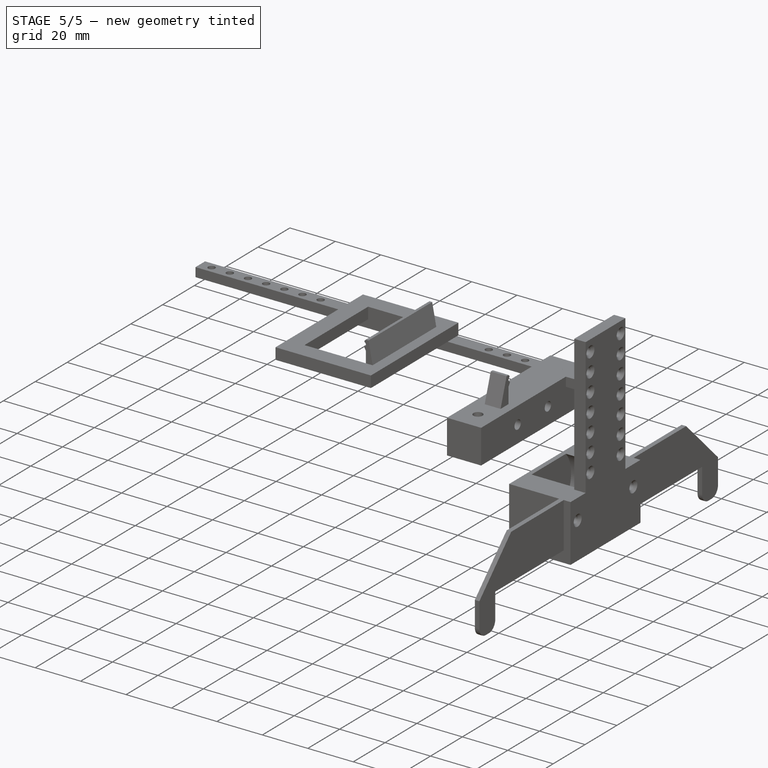
[diagram: stage 5 of 5 — iso view after this stage's code; geometry added in this stage tinted green]
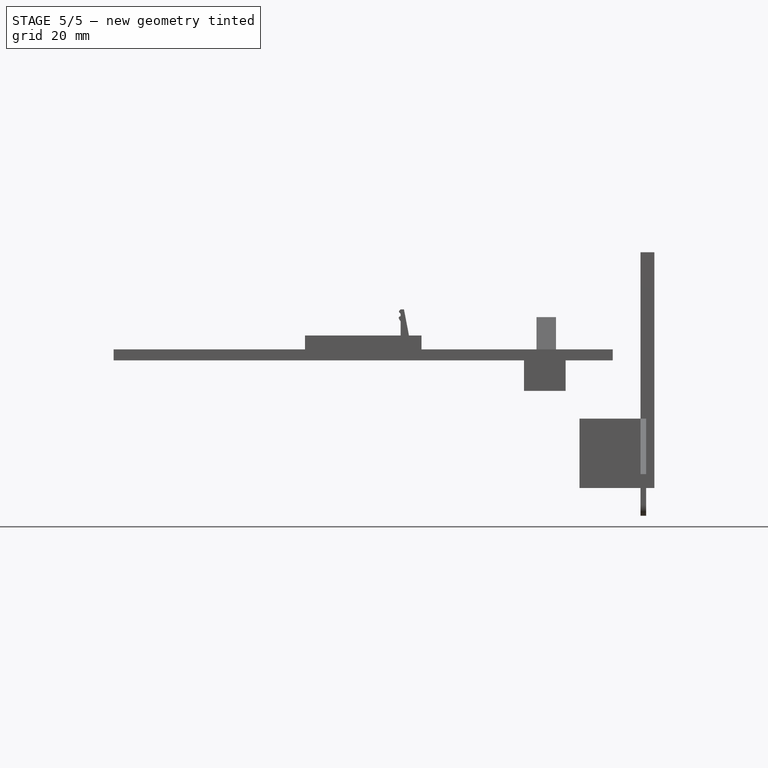
[diagram: stage 5 of 5 — front view after this stage's code; geometry added in this stage tinted green]
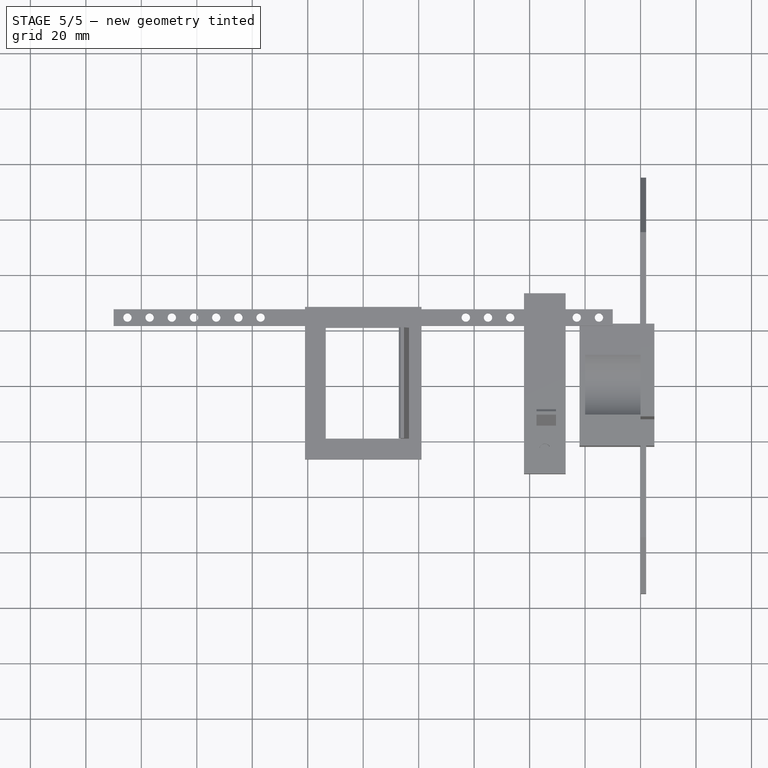
[diagram: stage 5 of 5 — top view after this stage's code; geometry added in this stage tinted green]
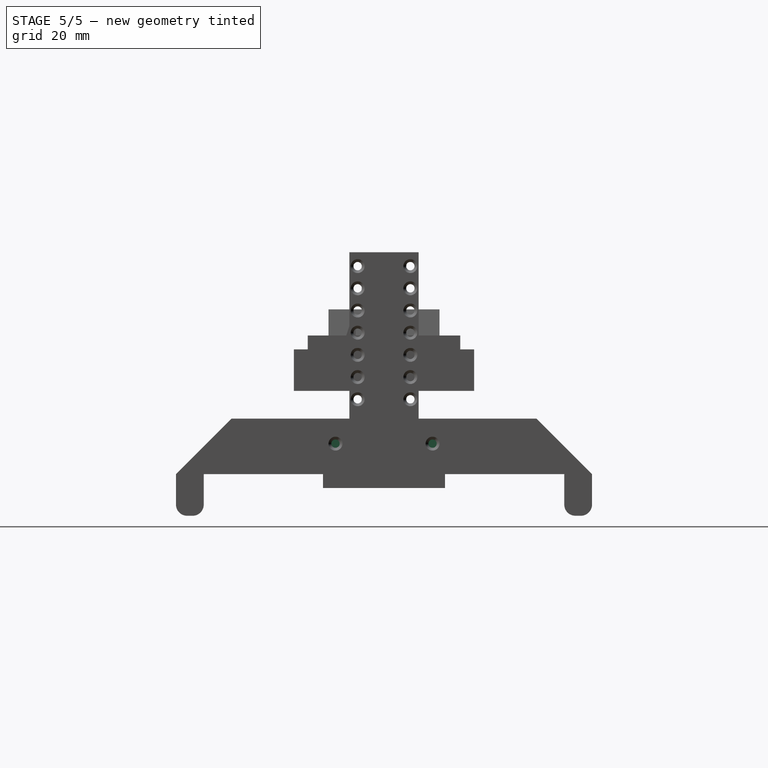
[diagram: stage 5 of 5 — right view after this stage's code; geometry added in this stage tinted green]
FEATURE [Sketcher::SketchObject] Sketch002  label="InsertsHole"
  FullyConstrained = true
  MapMode = 5
  Placement = pos=(0,0,0) rot=(0.57735,0.57735,0.57735;2.0944rad)
  Support = -> [YZ_Plane]
  sketch-geometry (2):
    g0: Circle CenterX=-17.5 CenterY=16 CenterZ=0 NormalX=0 NormalY=0 NormalZ=1 AngleXU=0 Radius=2
    g1: Circle CenterX=17.5 CenterY=16 CenterZ=0 NormalX=0 NormalY=0 NormalZ=1 AngleXU=0 Radius=2
  constraints (6):
    c: Diameter(g0) = 4
    c: Horizontal(g1,g0)
    c: Distance(g0,g1) = 35
    c: DistanceY(g-1,g0) = 16
    c: Equal(g0,g1)
    c: DistanceX(g0,g-1) = 17.5
FEATURE [PartDesign::Pocket] Pocket001
  BaseFeature = -> Pocket
  Direction = (-1,2e-16,-3e-16)
  Length = 4.2
  Length2 = 5
  Profile = -> Sketch002
  ReferenceAxis = -> Sketch002 [N_Axis]
  Type = 0
FEATURE [Sketcher::SketchObject] Sketch004
  FullyConstrained = true
  MapMode = 5
  Placement = pos=(0,0,0) rot=(0.57735,0.57735,0.57735;2.0944rad)
  Support = -> [YZ_Plane001]
  sketch-geometry (7):
    g0: Circle CenterX=-17.5 CenterY=16 CenterZ=0 NormalX=0 NormalY=0 NormalZ=1 AngleXU=0 Radius=1.5
    g1: Circle CenterX=0 CenterY=8 CenterZ=0 NormalX=0 NormalY=0 NormalZ=1 AngleXU=0 Radius=4.65
    g2: Circle CenterX=17.5 CenterY=16 CenterZ=0 NormalX=0 NormalY=0 NormalZ=1 AngleXU=0 Radius=1.5
    g3: LineSegment StartX=-22 StartY=25 StartZ=0 EndX=22 EndY=25 EndZ=0
    g4: LineSegment StartX=22 StartY=25 StartZ=0 EndX=22 EndY=0 EndZ=0
    g5: LineSegment StartX=22 StartY=0 StartZ=0 EndX=-22 EndY=0 EndZ=0
    g6: LineSegment StartX=-22 StartY=0 StartZ=0 EndX=-22 EndY=25 EndZ=0
  constraints (20):
    c: Diameter(g0) = 3
    c: Horizontal(g0,g2)
    c: Equal(g0,g2)
    c: Distance(g0,g2) = 35
    c: DistanceX(g-1,g2) = 17.5
    c: DistanceY(g-1,g2) = 16
    c: Diameter(g1) = 9.3
    c: DistanceY(g1,g2) = 8
    c: PointOnObject(g1,g-2)
    c: Coincident(g3,g4)
    c: Coincident(g4,g5)
    c: Coincident(g5,g6)
    c: Coincident(g6,g3)
    c: Horizontal(g3)
    c: Horizontal(g5)
    c: Vertical(g4)
    c: Vertical(g6)
    c: Distance(g4) = 25
    c: Distance(g5) = 44
    c: Symmetric(g5,g5,g-1)
FEATURE [PartDesign::Pad] Pad001
  Direction = (1,-2e-16,3e-16)
  Length = 1.6
  Length2 = 10
  Placement = pos=(0,0,0) rot=(0.57735,0.57735,0.57735;2.0944rad)
  Profile = -> Sketch004
  ReferenceAxis = -> Sketch004 [N_Axis]
  Type = 0
FEATURE [PartDesign::Hole] Hole
  BaseFeature = -> Pad001
  CustomThreadClearance = 0
  Depth = 102.276
  DepthType = 0
  Diameter = 3.4
  DrillForDepth = false
  DrillPoint = 0
  DrillPointAngle = 118
  HoleCutCountersinkAngle = 90
  HoleCutCustomValues = false
  HoleCutDepth = 0.5
  HoleCutDiameter = 6
  HoleCutType = 3
  ModelThread = false
  Placement = pos=(0,0,0) rot=(0.57735,0.57735,0.57735;2.0944rad)
  Profile = -> Pad001 [Face9]
  Tapered = false
  TaperedAngle = 90
  ThreadClass = 0
  ThreadDepth = 102.276
  ThreadDepthType = 0
  ThreadDirection = 0
  ThreadFit = 0
  ThreadSize = 9
  ThreadType = 1
  Threaded = false
  UseCustomThreadClearance = false
FEATURE [PartDesign::Body] Body001  label="MotorLid"
  Group = -> [Sketch004,Pad001,Hole]
  Origin = -> Origin001
  Tip = -> Hole
FEATURE [Sketcher::SketchObject] Sketch005  label="MotorMountCutout"
  FullyConstrained = true
  MapMode = 5
  Placement = pos=(0,0,0) rot=(0.57735,0.57735,0.57735;2.0944rad)
  Support = -> [YZ_Plane]
  sketch-geometry (5):
    g0: GeomPoint X=0 Y=16 Z=0
    g1: ArcOfCircle CenterX=-17.5 CenterY=16 CenterZ=0 NormalX=0 NormalY=0 NormalZ=1 AngleXU=0 Radius=3.5 StartAngle=1.5708 EndAngle=4.71239
    g2: ArcOfCircle CenterX=17.5 CenterY=16 CenterZ=0 NormalX=0 NormalY=0 NormalZ=1 AngleXU=0 Radius=3.5 StartAngle=4.71239 EndAngle=7.85398
    g3: LineSegment StartX=-17.5 StartY=12.5 StartZ=0 EndX=17.5 EndY=12.5 EndZ=0
    g4: LineSegment StartX=17.5 StartY=19.5 StartZ=0 EndX=-17.5 EndY=19.5 EndZ=0
  constraints (12):
    c: PointOnObject(g0,g-2)
    c: DistanceY(g-1,g0) = 16
    c: Tangent(g1,g3) = -1.5708
    c: Tangent(g3,g2) = -1.5708
    c: Tangent(g2,g4) = -1.5708
    c: Tangent(g4,g1) = -1.5708
    c: Equal(g1,g2)
    c: Horizontal(g3)
    c: Distance(g4) = 35
    c: Distance(g2,g2) = 7
    c: Horizontal(g1,g0)
    c: Distance(g2,g0) = 17.5
FEATURE [PartDesign::Pocket] Pocket002
  BaseFeature = -> Pocket001
  Direction = (-1,2e-16,-3e-16)
  Length = 0.9
  Length2 = 5
  Profile = -> Sketch005
  ReferenceAxis = -> Sketch005 [N_Axis]
  Type = 0
FEATURE [Sketcher::SketchObject] Sketch006  label="InsertsBackHoles"
  AttachmentOffset = pos=(0,0,-22) rot=(0,0,1;0rad)
  FullyConstrained = true
  MapMode = 5
  Placement = pos=(-22,4.9e-15,-4.9e-15) rot=(0.57735,0.57735,0.57735;2.0944rad)
  Support = -> [YZ_Plane]
  sketch-geometry (2):
    g0: Circle CenterX=-17.5 CenterY=16 CenterZ=0 NormalX=0 NormalY=0 NormalZ=1 AngleXU=0 Radius=2
    g1: Circle CenterX=17.5 CenterY=16 CenterZ=0 NormalX=0 NormalY=0 NormalZ=1 AngleXU=0 Radius=2
  constraints (6):
    c: Diameter(g0) = 4
    c: Horizontal(g1,g0)
    c: DistanceY(g-1,g0) = 16
    c: Equal(g0,g1)
    c: Distance(g0,g1) = 35
    c: DistanceX(g-1,g1) = 17.5
FEATURE [PartDesign::Pocket] Pocket003
  BaseFeature = -> Pocket002
  Direction = (-1,2e-16,-3e-16)
  Length = 4.2
  Length2 = 5
  Profile = -> Sketch006
  ReferenceAxis = -> Sketch006 [N_Axis]
  Reversed = true
  Type = 0
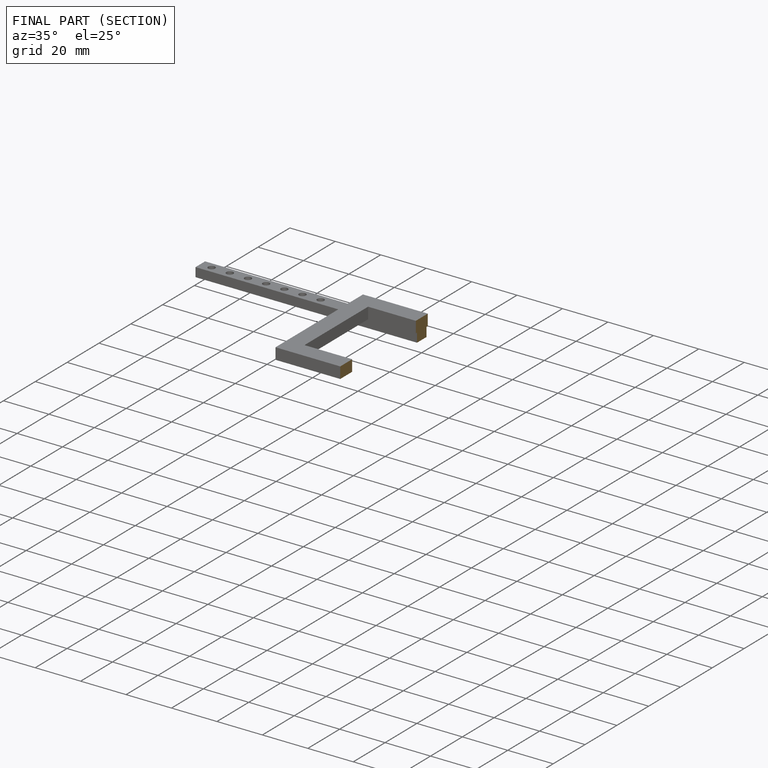
[diagram: finished part — half-section view (interior)]
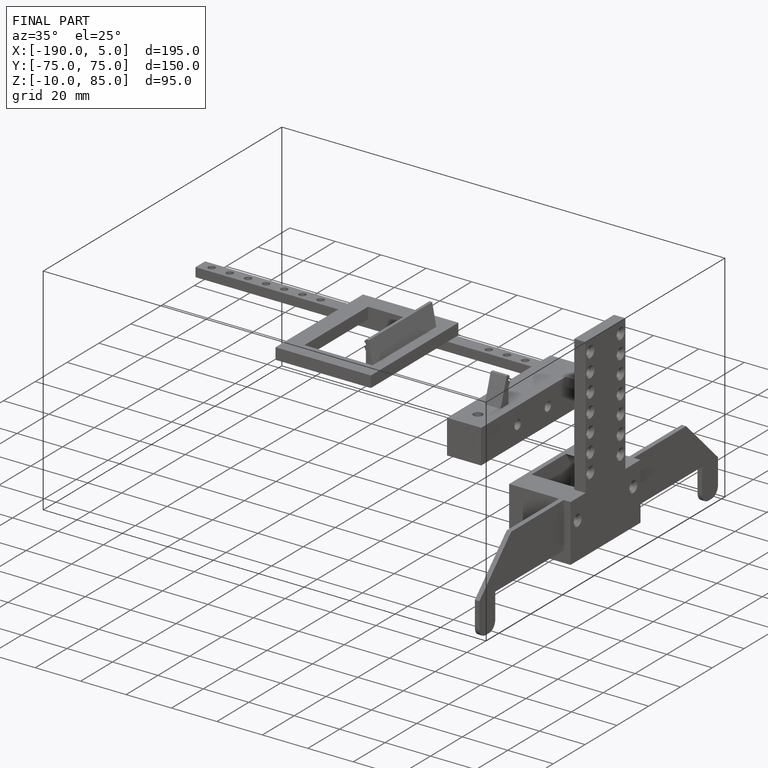
[diagram: finished part — iso view with bounding-box wireframe]
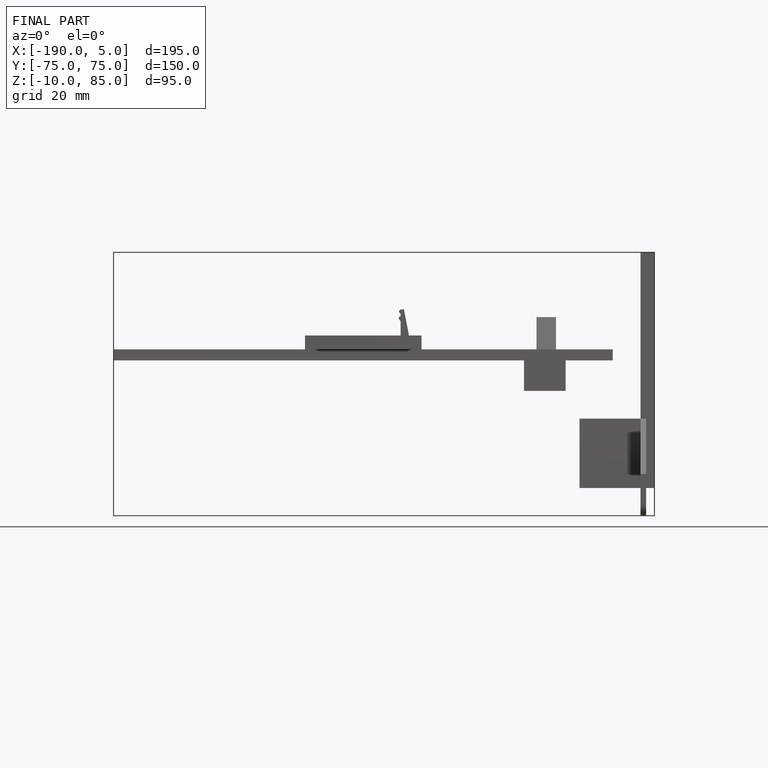
[diagram: finished part — front view with bounding-box wireframe]
